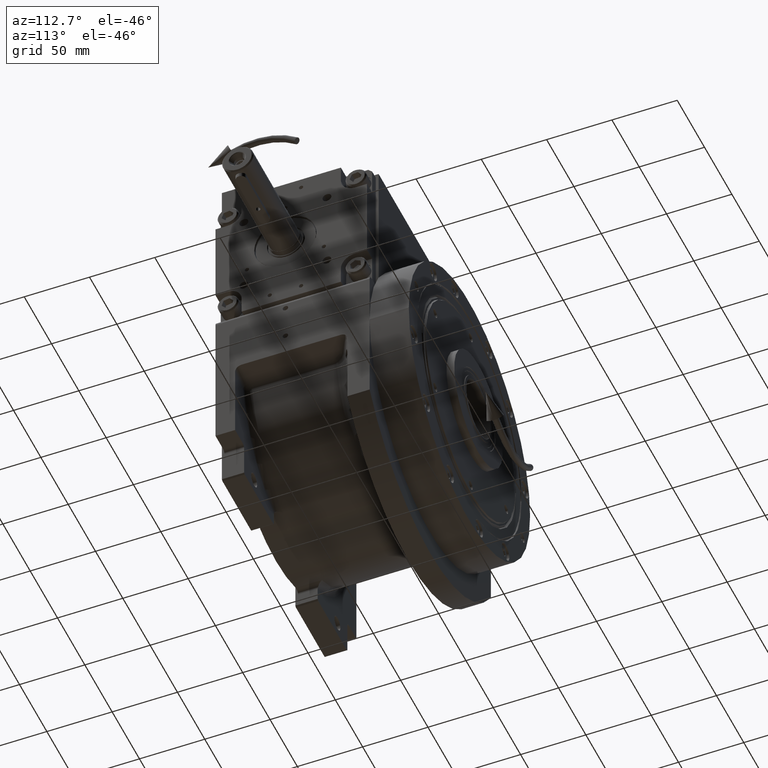
[diagram: clean part render]
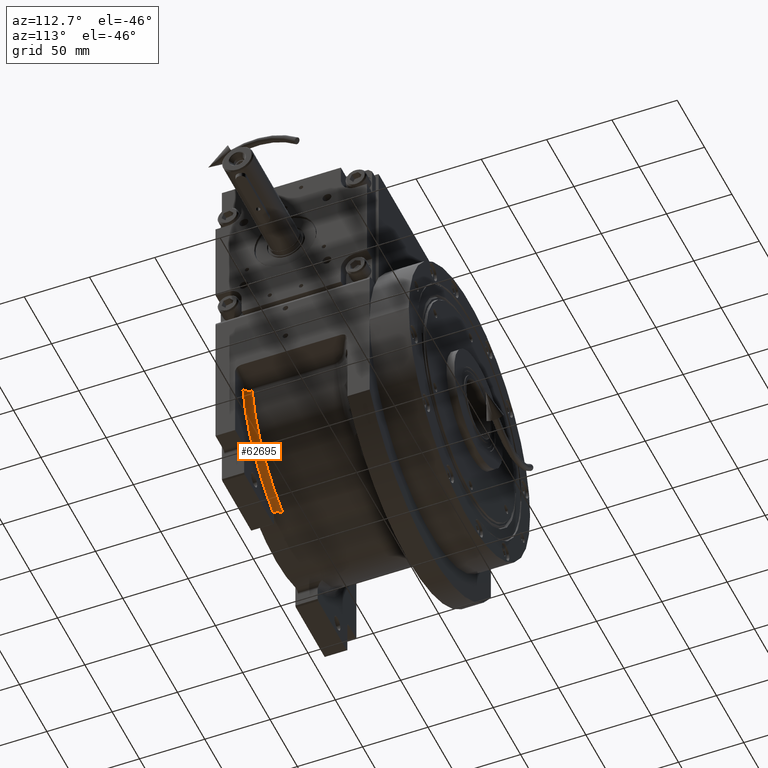
[diagram: same view with one face highlighted and labeled with its STEP entity id]
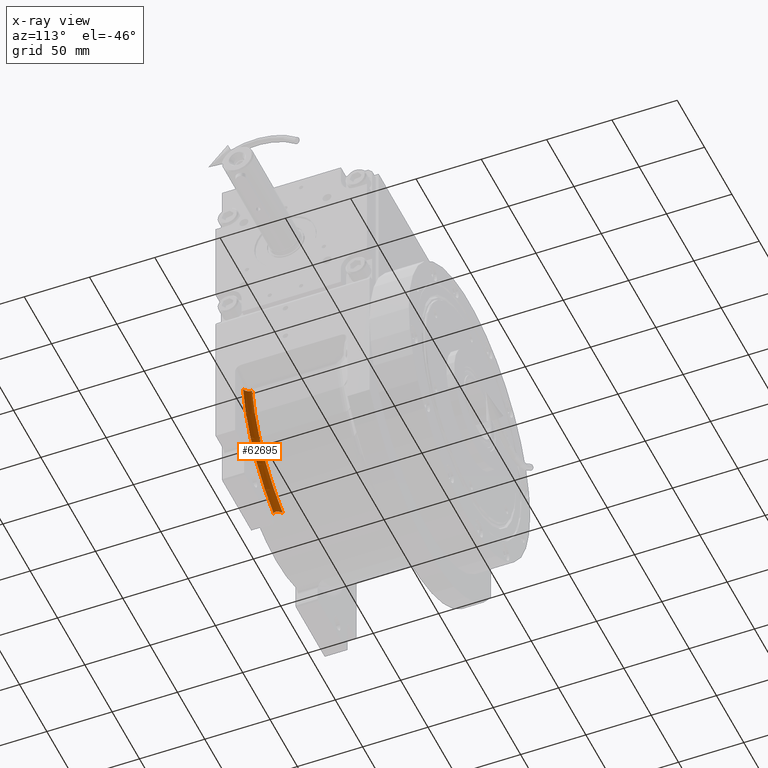
[diagram: x-ray of the same camera — body ghosted, the highlighted face saturated]
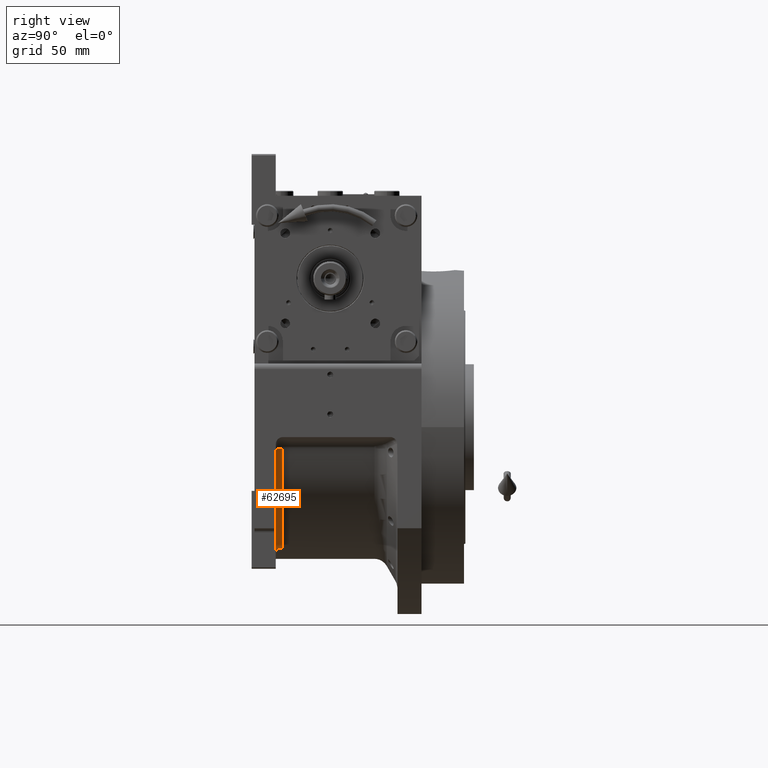
[diagram: same view with one face highlighted and labeled with its STEP entity id]
A machine part, auxiliary view. The second image highlights one B-rep face of the part: STEP entity #62695.
The next image is the same camera in x-ray: the body ghosted, the highlighted face saturated — about 0% of this face is hidden behind the body in this view.
A second angle (right view) of the same face is appended — the face is thin or edge-on in the first view.
In plain terms, the highlighted toroidal blend (fillet) surface has major radius 98 mm and minor (blend) radius 5 mm.
Its self-contained STEP definition (entity closure, byte-faithful):
#273 = CARTESIAN_POINT ( 'NONE',  ( 37.91411399596454146, -36.11390633827765839, -85.71808759790106080 ) ) ;
#1918 = DIRECTION ( 'NONE',  ( -1.521193458686483597E-12, -0.9891523797391900130, 0.1468930551670057927 ) ) ;
#2343 = CARTESIAN_POINT ( 'NONE',  ( 36.86006189105991382, -34.85487867555588792, -85.58224737668963655 ) ) ;
#3447 = EDGE_CURVE ( 'NONE', #25161, #5730, #47439, .T. ) ;
#5179 = CARTESIAN_POINT ( 'NONE',  ( 39.94168863504557976, -38.30806312829813720, -87.94533091995748464 ) ) ;
#5533 = CARTESIAN_POINT ( 'NONE',  ( 38.29131797567440998, -36.53382906549055775, -85.87541827149557605 ) ) ;
#5730 = VERTEX_POINT ( 'NONE', #11904 ) ;
#5875 = CARTESIAN_POINT ( 'NONE',  ( 37.22983051062382032, -35.30922991626377438, -85.59133299640613757 ) ) ;
#6563 = CARTESIAN_POINT ( 'NONE',  ( 37.12709070138915024, -35.18395834029334424, -85.58589792298440102 ) ) ;
#6769 = DIRECTION ( 'NONE',  ( 0.000000000000000000, -1.000000000000000000, 0.000000000000000000 ) ) ;
#6895 = CARTESIAN_POINT ( 'NONE',  ( 35.84375000000000000, -33.50000000000000000, -85.81506619433150718 ) ) ;
#7208 = AXIS2_PLACEMENT_3D ( 'NONE', #44649, #18104, #39391 ) ;
#7456 = CARTESIAN_POINT ( 'NONE',  ( -4.517455316885850268E-28, -33.50000000000000000, 0.000000000000000000 ) ) ;
#7799 = FACE_OUTER_BOUND ( 'NONE', #21335, .T. ) ;
#8235 = EDGE_CURVE ( 'NONE', #63501, #55802, #31105, .T. ) ;
#8538 = DIRECTION ( 'NONE',  ( 0.9865608847878558629, 0.000000000000000000, -0.1633940653959109757 ) ) ;
#9970 = AXIS2_PLACEMENT_3D ( 'NONE', #32248, #46919, #36108 ) ;
#10089 = CARTESIAN_POINT ( 'NONE',  ( 38.49290683869843122, -36.75509717949094579, -85.97984885203182159 ) ) ;
#11126 = CARTESIAN_POINT ( 'NONE',  ( 37.59598383155265111, -35.74537592267259356, -85.64155832161043236 ) ) ;
#11904 = CARTESIAN_POINT ( 'NONE',  ( 35.84375000000000000, -33.50000000000000000, -85.81506619433150718 ) ) ;
#12153 = CARTESIAN_POINT ( 'NONE',  ( 37.03796036747787213, -35.07445129423850005, -85.58367028439576529 ) ) ;
#12836 = CARTESIAN_POINT ( 'NONE',  ( 37.07521646605638210, -35.12031844622141818, -85.58431968164917691 ) ) ;
#14909 = AXIS2_PLACEMENT_3D ( 'NONE', #40299, #61551, #8538 ) ;
#15310 = CARTESIAN_POINT ( 'NONE',  ( 39.46017560821716330, -37.77628257991309368, -86.86635131325193981 ) ) ;
#15657 = CARTESIAN_POINT ( 'NONE',  ( 38.73982174116559207, -37.02162543259724714, -86.13633260630172117 ) ) ;
#16276 = ORIENTED_EDGE ( 'NONE', *, *, #59823, .F. ) ;
#18104 = DIRECTION ( 'NONE',  ( 0.000000000000000000, 1.000000000000000000, 0.000000000000000000 ) ) ;
#18595 = EDGE_CURVE ( 'NONE', #63501, #59577, #60698, .T. ) ;
#19962 = AXIS2_PLACEMENT_3D ( 'NONE', #33347, #33685, #1918 ) ;
#20874 = CARTESIAN_POINT ( 'NONE',  ( 39.74495358483298446, -38.07868174001065142, -87.36883667221924554 ) ) ;
#21224 = CARTESIAN_POINT ( 'NONE',  ( 39.52241143346854813, -37.84128128863497409, -86.95871039590753071 ) ) ;
#21335 = EDGE_LOOP ( 'NONE', ( #51505, #43193, #16276, #37927, #58625 ) ) ;
#21492 = AXIS2_PLACEMENT_3D ( 'NONE', #7456, #6769, #54558 ) ;
#22262 = CARTESIAN_POINT ( 'NONE',  ( 37.04915558720004043, -35.08824879021479148, -85.58382109314119646 ) ) ;
#25161 = VERTEX_POINT ( 'NONE', #43727 ) ;
#26813 = CARTESIAN_POINT ( 'NONE',  ( 38.84315786353846534, -37.13154013006351306, -86.21337737788608990 ) ) ;
#27139 = CARTESIAN_POINT ( 'NONE',  ( 38.39184062818169707, -36.64452035158482346, -85.92540056752750388 ) ) ;
#27847 = CARTESIAN_POINT ( 'NONE',  ( 36.67739314232039760, -34.62462029465078217, -85.59395588697439905 ) ) ;
#31105 = CIRCLE ( 'NONE', #9970, 4.999999999999942268 ) ;
#32248 = CARTESIAN_POINT ( 'NONE',  ( 96.68296670946028826, -33.50000000000000000, -16.01261840728710339 ) ) ;
#32386 = CARTESIAN_POINT ( 'NONE',  ( 37.48607927852391697, -35.61623698484422818, -85.62115722521122052 ) ) ;
#33340 = CIRCLE ( 'NONE', #19962, 6.002907996611312136 ) ;
#33347 = CARTESIAN_POINT ( 'NONE',  ( 40.00000000000915179, -32.49709200338929804, -89.46507963159309895 ) ) ;
#33420 = CARTESIAN_POINT ( 'NONE',  ( 36.28122944560868035, -34.10514034861937915, -85.66356157534990245 ) ) ;
#33685 = DIRECTION ( 'NONE',  ( 1.000000000000000000, -1.519820681091505116E-12, 1.203206486169197935E-13 ) ) ;
#36108 = DIRECTION ( 'NONE',  ( -1.364131030356945609E-10, -1.000000000000000000, -6.137826358276825835E-10 ) ) ;
#36597 = CARTESIAN_POINT ( 'NONE',  ( 39.45398976363964039, -37.76983823182825972, -86.85751929494726653 ) ) ;
#36950 = CARTESIAN_POINT ( 'NONE',  ( 38.30342995416547325, -36.54720253401932695, -85.88123203050955112 ) ) ;
#37635 = CARTESIAN_POINT ( 'NONE',  ( 38.57658386702574660, -36.84576868068085531, -86.03040274461163506 ) ) ;
#37927 = ORIENTED_EDGE ( 'NONE', *, *, #3447, .T. ) ;
#39391 = DIRECTION ( 'NONE',  ( 0.9865608847851541352, 0.000000000000000000, -0.1633940654122230385 ) ) ;
#40299 = CARTESIAN_POINT ( 'NONE',  ( 1.421085471520200056E-14, -33.50000000000000000, 1.421085471520200056E-14 ) ) ;
#40477 = TOROIDAL_SURFACE ( 'NONE', #21492, 98.00000000000000000, 5.000000000000000000 ) ;
#41664 = CIRCLE ( 'NONE', #14909, 93.00000000000001421 ) ;
#41824 = CARTESIAN_POINT ( 'NONE',  ( 39.80188061413612388, -38.14214654199553678, -87.50906114663472124 ) ) ;
#42168 = CARTESIAN_POINT ( 'NONE',  ( 39.13526922541816333, -37.43956773572921293, -86.46109047546306670 ) ) ;
#42514 = CARTESIAN_POINT ( 'NONE',  ( 39.30611994321870384, -37.61586876873188601, -86.64825657115706292 ) ) ;
#42853 = CARTESIAN_POINT ( 'NONE',  ( 39.47073459451536337, -37.78729085016654921, -86.88160583691413308 ) ) ;
#43193 = ORIENTED_EDGE ( 'NONE', *, *, #18595, .T. ) ;
#43727 = CARTESIAN_POINT ( 'NONE',  ( 40.00000000000000000, -38.43488273359274388, -88.58329413608420566 ) ) ;
#44649 = CARTESIAN_POINT ( 'NONE',  ( 1.421085471520199867E-13, -38.50000000000000000, -1.136868377216159793E-13 ) ) ;
#46919 = DIRECTION ( 'NONE',  ( -0.1633940650934810335, 6.278228019989741524E-10, -0.9865608848379442408 ) ) ;
#47439 = B_SPLINE_CURVE_WITH_KNOTS ( 'NONE', 3,
 ( #52983, #53322, #5179, #41824, #20874, #47757, #67625, #21224, #48447, #42853, #15310, #36597, #42514, #42168, #26813, #15657, #37635, #10089, #27139, #63773, #52637, #36950, #58211, #5533, #48102, #273, #11126, #32386, #53667, #5875, #6563, #12836, #22262, #12153, #60271, #59929, #2343, #27847, #33420, #54699, #6895 ),
 .UNSPECIFIED., .F., .F.,
 ( 4, 2, 2, 1, 1, 1, 2, 2, 2, 2, 1, 1, 1, 1, 2, 2, 2, 2, 1, 1, 1, 1, 2, 2, 2, 4 ),
 ( 0.000000000000000000, 0.1250000000000376366, 0.1875000000000560108, 0.2187500000000673073, 0.2343750000000743017, 0.2421875000000771605, 0.2460937500000755784, 0.2500000000000739409, 0.3750000000000743294, 0.4375000000000736633, 0.4687500000000730527, 0.4843750000000727196, 0.4921875000000733302, 0.4960937500000727751, 0.4980468750000709988, 0.5000000000000692779, 0.6250000000000780487, 0.6875000000000813793, 0.7187500000000821565, 0.7343750000000833777, 0.7421875000000830447, 0.7460937500000819345, 0.7480468750000799361, 0.7500000000000778266, 0.8750000000000389688, 1.000000000000000000 ),
 .UNSPECIFIED. ) ;
#47757 = CARTESIAN_POINT ( 'NONE',  ( 39.64492163817222092, -37.97074917450614606, -87.16756865298404477 ) ) ;
#48102 = CARTESIAN_POINT ( 'NONE',  ( 38.11072850963851977, -36.33430569366689156, -85.78944643306051887 ) ) ;
#48447 = CARTESIAN_POINT ( 'NONE',  ( 39.48646516666547512, -37.80370147460352825, -86.90456860182018772 ) ) ;
#50161 = EDGE_CURVE ( 'NONE', #55802, #5730, #41664, .T. ) ;
#51207 = CARTESIAN_POINT ( 'NONE',  ( 40.00000000000000000, -38.50000000000000000, -89.46507698536399289 ) ) ;
#51505 = ORIENTED_EDGE ( 'NONE', *, *, #8235, .F. ) ;
#52637 = CARTESIAN_POINT ( 'NONE',  ( 38.31457193953814766, -36.55949762728036490, -85.88662211840959060 ) ) ;
#52983 = CARTESIAN_POINT ( 'NONE',  ( 40.00000000000000000, -38.43488273359274388, -88.58329413608420566 ) ) ;
#53322 = CARTESIAN_POINT ( 'NONE',  ( 39.99355479935752555, -38.38596604858462769, -88.25689856553876211 ) ) ;
#53667 = CARTESIAN_POINT ( 'NONE',  ( 37.31610024901428346, -35.41312971207743487, -85.59974200625552498 ) ) ;
#54558 = DIRECTION ( 'NONE',  ( 0.9928071675485924397, 0.000000000000000000, -0.1197243837492646679 ) ) ;
#54699 = CARTESIAN_POINT ( 'NONE',  ( 36.06776989235682152, -33.81578640616864817, -85.72149622611073028 ) ) ;
#55802 = VERTEX_POINT ( 'NONE', #58440 ) ;
#58211 = CARTESIAN_POINT ( 'NONE',  ( 38.29599216042110754, -36.53899163224654245, -85.87765302453139782 ) ) ;
#58440 = CARTESIAN_POINT ( 'NONE',  ( 91.75016228514499517, -33.50000000000000000, -15.19564808257825028 ) ) ;
#58625 = ORIENTED_EDGE ( 'NONE', *, *, #50161, .F. ) ;
#59577 = VERTEX_POINT ( 'NONE', #51207 ) ;
#59823 = EDGE_CURVE ( 'NONE', #25161, #59577, #33340, .T. ) ;
#59929 = CARTESIAN_POINT ( 'NONE',  ( 37.02555919719009836, -35.05915592930543312, -85.58353824021037326 ) ) ;
#60271 = CARTESIAN_POINT ( 'NONE',  ( 37.03049107713086130, -35.06524112375337410, -85.58358378534640565 ) ) ;
#60698 = CIRCLE ( 'NONE', #7208, 97.99999999999998579 ) ;
#61551 = DIRECTION ( 'NONE',  ( 0.000000000000000000, 1.000000000000000000, 0.000000000000000000 ) ) ;
#62695 = ADVANCED_FACE ( 'NONE', ( #7799 ), #40477, .F. ) ;
#63501 = VERTEX_POINT ( 'NONE', #65130 ) ;
#63773 = CARTESIAN_POINT ( 'NONE',  ( 38.34046665861283998, -36.58803727839591602, -85.89934940610265812 ) ) ;
#65130 = CARTESIAN_POINT ( 'NONE',  ( 96.68296670890340749, -38.50000000000000000, -16.01261841038749623 ) ) ;
#67625 = CARTESIAN_POINT ( 'NONE',  ( 39.59124602772452306, -37.91360148802566243, -87.06920353046638184 ) ) ;